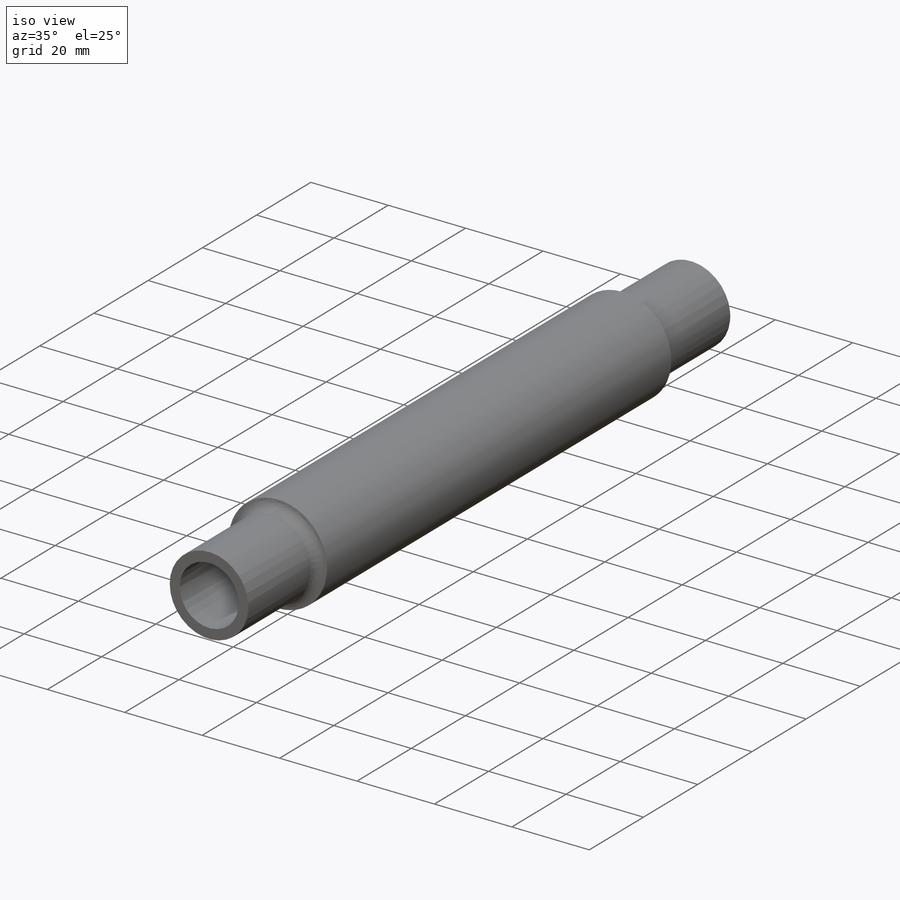
[diagram: iso view]
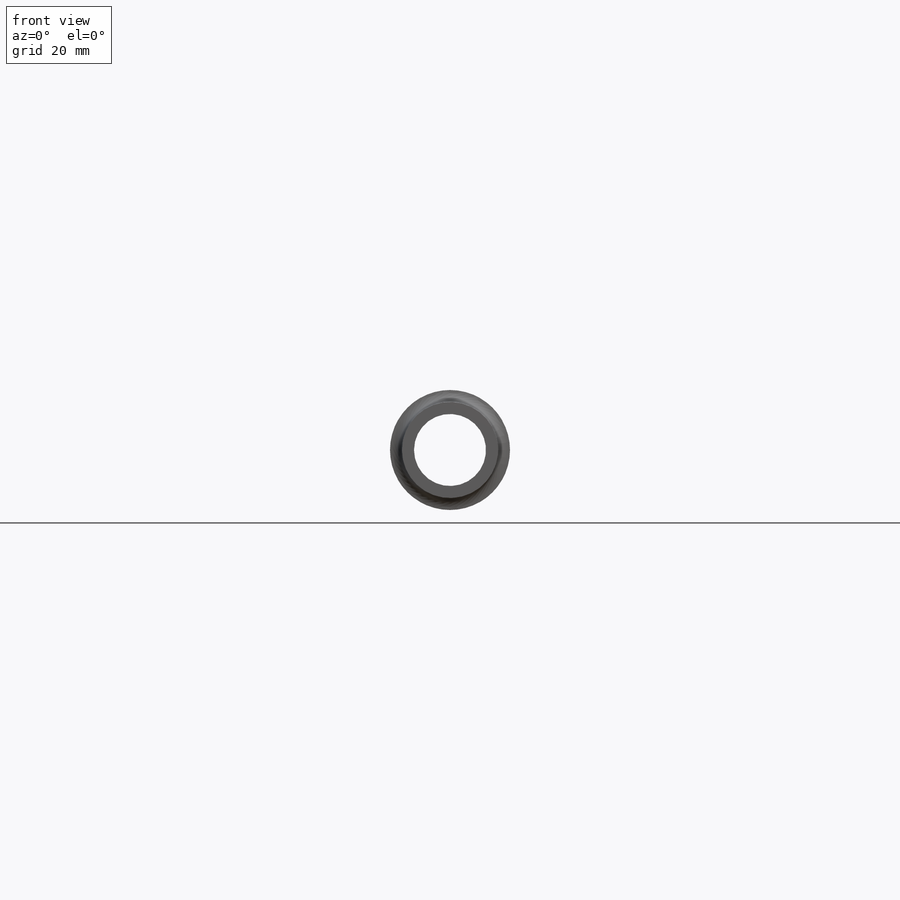
[diagram: front view]
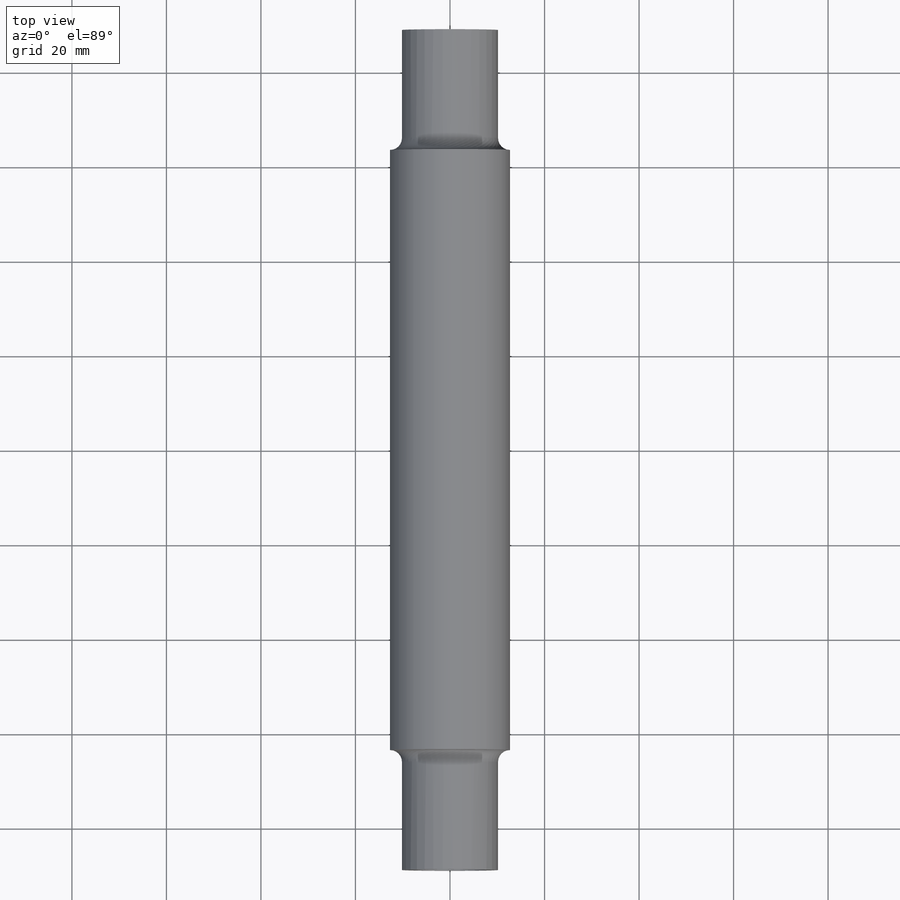
[diagram: top view]
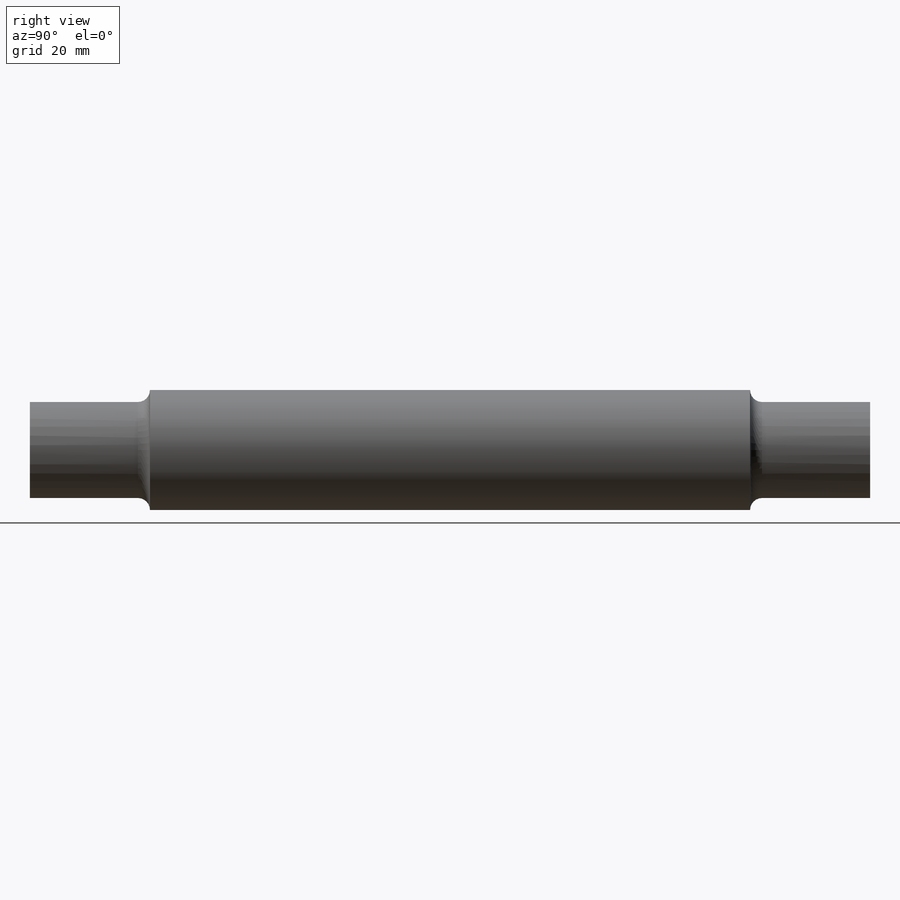
[diagram: right view]
SOLIDWORKS PART (.sldprt)
format: sldprt  version: not decoded by parser v0  size: 230,400 bytes
history: native  units: mm
features: sketch x2, extrude x2, material x1, fillet x1, mirror x1, shell x1 (+15 scaffold rows collapsed)
feature tree (23):
  scaffold x15  (default folders/planes/origin — collapsed)
  material  "Material <not specified>"
  sketch  "Sketch1"  dims[D1=25.4mm]
  extrude  "Extrude1"  Depth=127mm
  sketch  "Sketch2"  dims[D1=20.32mm]
  extrude  "Extrude2"  Depth=25.4mm
  fillet  "Fillet1"  Radius=2.54mm
  mirror  "Mirror3"
  shell  "Shell1"  Thickness=2.54mm
decode coverage: 6 of 7 modeling features carry decoded parameters
note: suppression state not decoded; provenance and decode notes live in map.json
